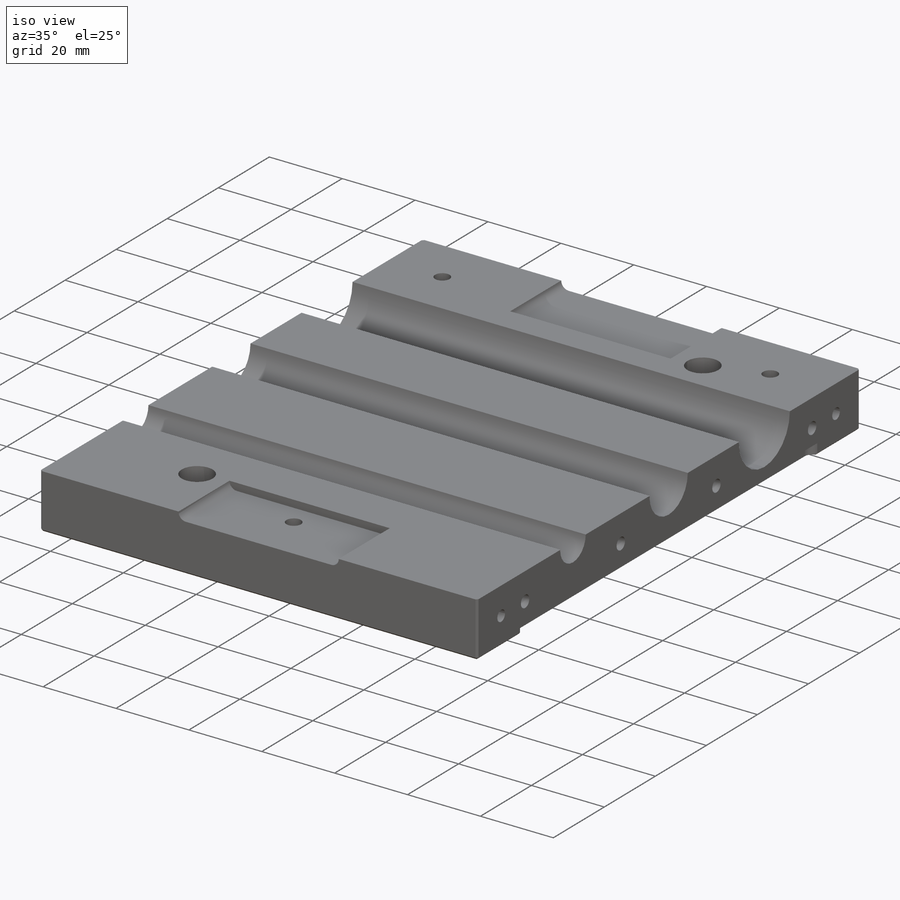
[diagram: iso view]
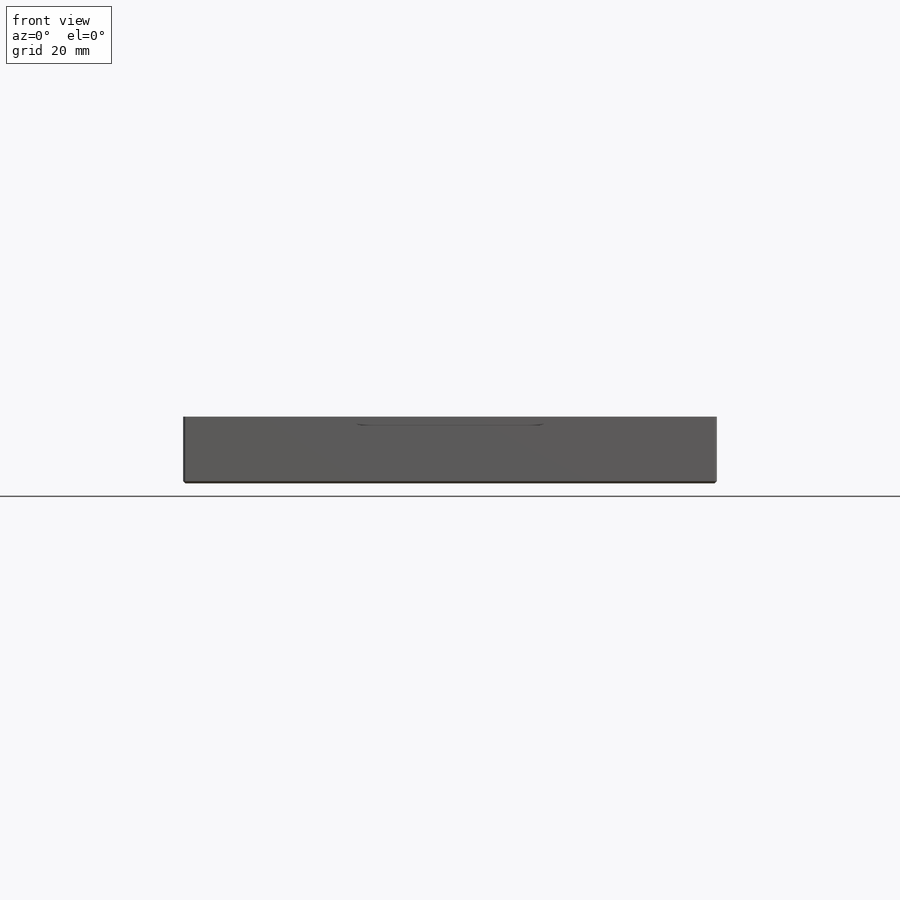
[diagram: front view]
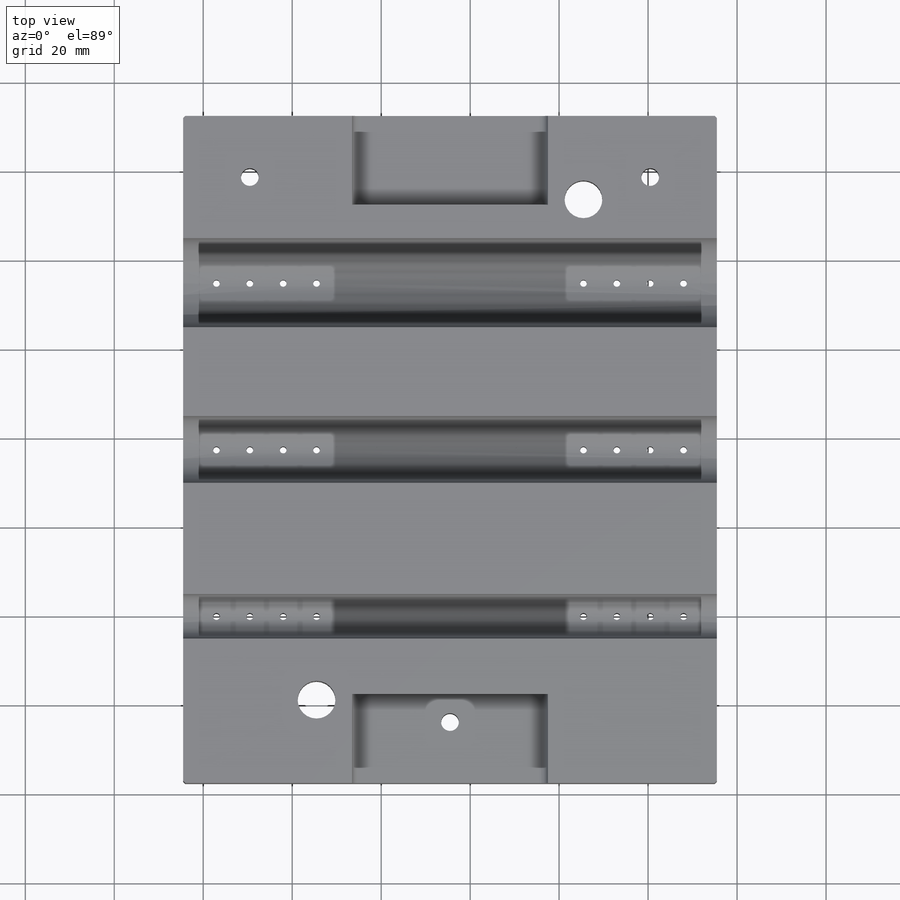
[diagram: top view]
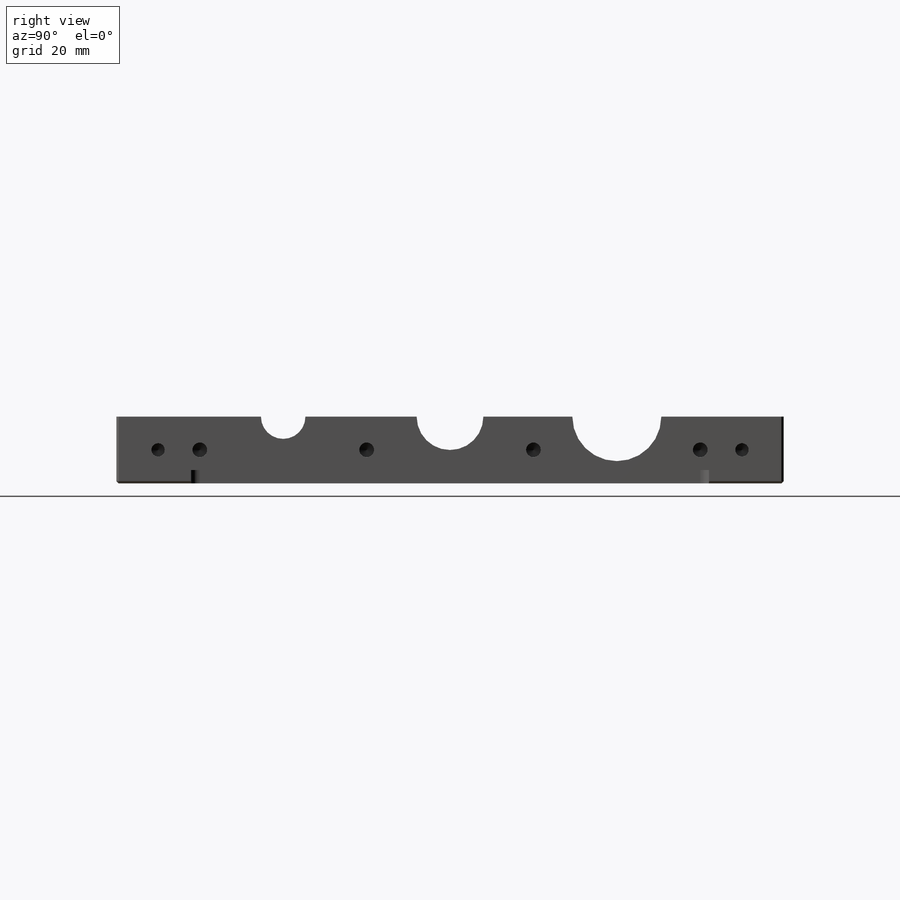
[diagram: right view]
SOLIDWORKS PART (.sldprt)
format: sldprt  version: not decoded by parser v0  size: 768,512 bytes
history: native  units: mm
features: sketch x30, mirror x10, hole x7, thread x4, cut_extrude x3, plane x2, fillet x2, material x1, extrude x1 (+12 scaffold rows collapsed)
feature tree (72):
  scaffold x12  (default folders/planes/origin — collapsed)
  material  "Material <not specified>"
  sketch  "Sketch1"  dims[D1=120.0mm D2=150.0mm]
  extrude  "Boss-Extrude1"  Depth=15mm
  sketch  "Sketch2"  dims[D1=10.0mm D2=15.0mm D3=20.0mm]
  cut_extrude  "Cut-Extrude1"  [1 undecoded]
  sketch  "Sketch3"
  sketch  "Sketch5"
  sketch  "Sketch7"
  sketch  "Sketch8"
  plane  "Plane1"
  sketch  "Sketch9"  dims[c1.D1=~19.003994mm c1.D2=20.0mm c1.D3=5.0mm c2.D1=20.0mm c2.D3=20.0mm]
  cut_extrude  "Cut-Extrude2"  Depth=2mm
  sketch  "Sketch10"
  plane  "Plane2"
  mirror  "Mirror2"
  sketch  "Sketch11"
  hole  "M4 Tapped Hole2"  Diameter=3.3mm Depth=20mm
  sketch  "3DSketch4"
  sketch  "Sketch12"  dims[hole-wizard template sketch: 47 standard entries collapsed; hole parameters kept: c15.Tap Drill Depth=20.0mm c15.D3=~14.816244mm c15.Drill Angle=118.0deg]
  thread  "Hole Thread3"  Diameter=15mm  [1 undecoded]
  mirror  "Mirror3"
  mirror  "Mirror4"
  sketch  "Sketch13"
  hole  "M4 Tapped Hole3"  Diameter=3.3mm Depth=20mm
  sketch  "3DSketch5"
  sketch  "Sketch15"  dims[hole-wizard template sketch: 47 standard entries collapsed; hole parameters kept: c15.Tap Drill Depth=20.0mm c15.D3=~14.816244mm c15.Drill Angle=118.0deg]
  thread  "Hole Thread4"  Diameter=15mm  [1 undecoded]
  mirror  "Mirror5"
  mirror  "Mirror6"
  sketch  "Sketch16"
  hole  "Ø1.5mm Dowel Hole1"  Diameter=1.5mm Depth=25mm
  sketch  "3DSketch8"
  sketch  "Sketch19"  dims[hole-wizard template sketch: 47 standard entries collapsed; hole parameters kept: c15.Hole Depth=25.0mm c15.D3=~14.816244mm c15.Drill Angle=118.0deg]
  mirror  "Mirror7"
  mirror  "Mirror8"
  sketch  "Sketch20"  dims[D1=2.0mm D2=112.5mm]
  cut_extrude  "Cut-Extrude3"  Depth=3mm
  mirror  "Mirror9"
  sketch  "Sketch22"
  hole  "Ø3.0mm Dowel Hole1"  Diameter=3mm Depth=25mm
  sketch  "3DSketch10"
  sketch  "Sketch23"  dims[hole-wizard template sketch: 47 standard entries collapsed; hole parameters kept: c15.Hole Depth=25.0mm c15.D3=~14.816244mm c15.Drill Angle=118.0deg]
  mirror  "Mirror10"
  mirror  "Mirror11"
  sketch  "Sketch24"  dims[D1=2.0mm]
  sketch  "Sketch26"
  hole  "M10 Tapped Hole2"  Diameter=8.5mm Depth=24.5mm
  sketch  "3DSketch14"
  sketch  "Sketch30"  dims[hole-wizard template sketch: 46 standard entries collapsed; hole parameters kept: c15.Tap Drill Dia.=8.5mm c15.Tap Drill Depth=24.5mm c15.D3=~14.816244mm c15.Drill Angle=118.0deg]
  thread  "Hole Thread9"  Diameter=15mm  [1 undecoded]
  thread  "Hole Thread10"  Diameter=15mm  [1 undecoded]
  hole  "Ø4.0mm Dowel Hole1"  Diameter=4mm Depth=25mm
  sketch  "3DSketch15"
  sketch  "Sketch31"  dims[hole-wizard template sketch: 47 standard entries collapsed; hole parameters kept: c15.Hole Depth=25.0mm c15.D3=~14.816244mm c15.Drill Angle=118.0deg]
  fillet  "Fillet1"  Radius=2mm
  fillet  "Fillet2"  Radius=2mm
  sketch  "Sketch32"
  hole  "Ø4.0mm Dowel Hole2"  Diameter=4mm Depth=20mm
  sketch  "Sketch34"
  sketch  "Sketch33"  dims[hole-wizard template sketch: 47 standard entries collapsed; hole parameters kept: c15.Hole Depth=20.0mm c15.D3=~14.816244mm c15.Drill Angle=118.0deg]
decode coverage: 28 of 57 modeling features carry decoded parameters
note: ~ marks probable driven/reference dimensions
note: 5 parameter values undecoded
summary: Diameter pulled from absorbed wizard sketch
note: suppression state not decoded; provenance and decode notes live in map.json
